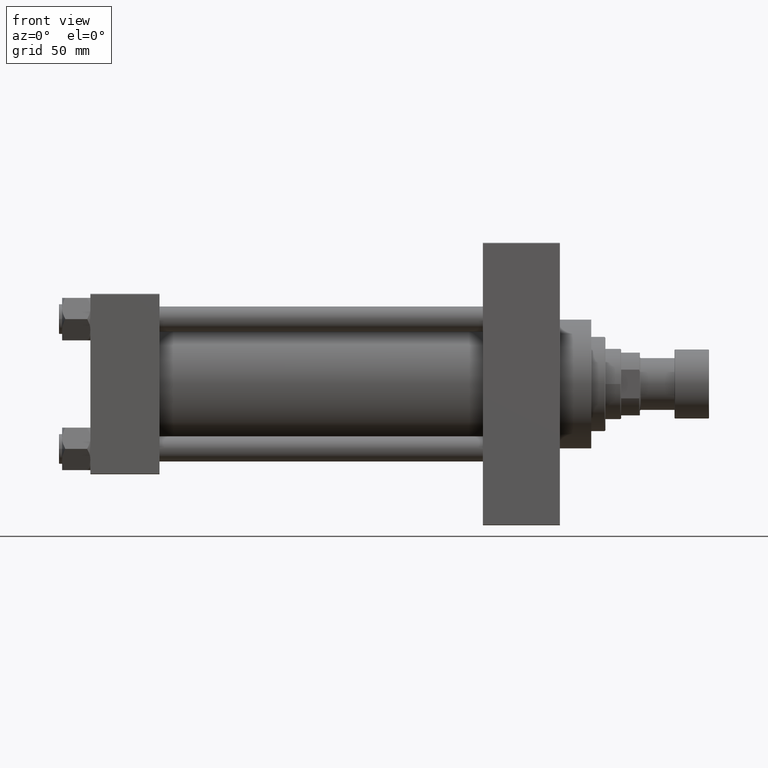
[diagram: clean part render]
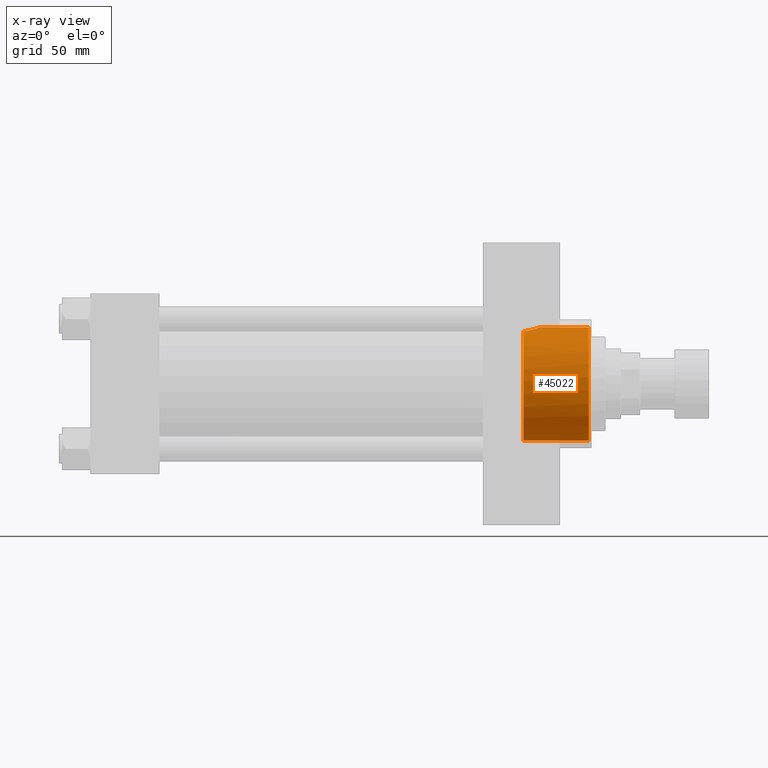
[diagram: x-ray — body ghosted, one internal face saturated and labeled with its STEP entity id]
A machine part, front view, then the same camera in x-ray: the body is ghosted and one INTERNAL B-rep face — a face not visible from any outside direction — is saturated and labeled: STEP entity #45022.
In plain terms, the highlighted cylindrical surface (partial cylindrical patch) has radius 36 mm, axis along (1, 0, 0).
Its self-contained STEP definition (entity closure, byte-faithful):
#1319 = EDGE_CURVE ( 'NONE', #35714, #31705, #30993, .T. ) ;
#1709 = CARTESIAN_POINT ( 'NONE',  ( 283.7144084780976527, -7.753104972441691167, 35.15664683191295836 ) ) ;
#1771 = DIRECTION ( 'NONE',  ( 1.000000000000000000, -0.000000000000000000, -0.000000000000000000 ) ) ;
#1952 = CARTESIAN_POINT ( 'NONE',  ( 285.8814408249626240, -2.996635129533371522, 35.87694312671834496 ) ) ;
#2763 = EDGE_LOOP ( 'NONE', ( #6161, #41988, #17212, #40558, #15771 ) ) ;
#5133 = CARTESIAN_POINT ( 'NONE',  ( 284.1369082302657034, -7.132913908064977271, 35.28770313236167055 ) ) ;
#5620 = CARTESIAN_POINT ( 'NONE',  ( 282.7829955645538007, -8.922873027715082728, 34.88174282732674669 ) ) ;
#5858 = CARTESIAN_POINT ( 'NONE',  ( 285.9615557504130265, -2.628343228240515916, 35.90584824798535379 ) ) ;
#6161 = ORIENTED_EDGE ( 'NONE', *, *, #23533, .F. ) ;
#6176 = CARTESIAN_POINT ( 'NONE',  ( 286.2200000000000273, 4.408731805096607676E-15, 36.00000000000000000 ) ) ;
#7183 = DIRECTION ( 'NONE',  ( 1.000000000000000000, -0.000000000000000000, -0.000000000000000000 ) ) ;
#8819 = CARTESIAN_POINT ( 'NONE',  ( 284.3340033522583212, -6.815280192024304462, 35.35054759480855324 ) ) ;
#9060 = CARTESIAN_POINT ( 'NONE',  ( 285.1948937127547765, -5.159834589306234065, 35.63551938799943741 ) ) ;
#9305 = CARTESIAN_POINT ( 'NONE',  ( 284.8836492013383577, -5.839896060611117434, 35.52932100949514194 ) ) ;
#9538 = CARTESIAN_POINT ( 'NONE',  ( 281.1396695021039136, -10.42376285600498598, 34.45866136291866155 ) ) ;
#10606 = CYLINDRICAL_SURFACE ( 'NONE', #39675, 36.00000000000000000 ) ;
#13200 = CARTESIAN_POINT ( 'NONE',  ( 286.2200000000000841, -0.7632647160769693295, 36.00000000000000711 ) ) ;
#14576 = VERTEX_POINT ( 'NONE', #42443 ) ;
#15120 = CARTESIAN_POINT ( 'NONE',  ( 275.7400000000000091, 0.000000000000000000, -36.00000000000000000 ) ) ;
#15771 = ORIENTED_EDGE ( 'NONE', *, *, #1319, .F. ) ;
#15899 = CARTESIAN_POINT ( 'NONE',  ( 283.4891427515922260, -8.055144359843696478, 35.08850325643999213 ) ) ;
#16615 = CARTESIAN_POINT ( 'NONE',  ( 278.6039743856110817, -11.99680468088063101, 33.94354112271071955 ) ) ;
#16859 = CARTESIAN_POINT ( 'NONE',  ( 277.5622627804117428, -12.41346128962092443, 33.79242230791056301 ) ) ;
#17212 = ORIENTED_EDGE ( 'NONE', *, *, #24922, .T. ) ;
#17685 = CARTESIAN_POINT ( 'NONE',  ( 275.7400000000000091, 0.000000000000000000, 0.000000000000000000 ) ) ;
#17859 = VERTEX_POINT ( 'NONE', #43949 ) ;
#20048 = CARTESIAN_POINT ( 'NONE',  ( 281.4301524439943023, -10.19013505585469659, 34.52862519156883536 ) ) ;
#20100 = VECTOR ( 'NONE', #41722, 1000.000000000000000 ) ;
#20462 = DIRECTION ( 'NONE',  ( 1.000000000000000000, 0.000000000000000000, 0.000000000000000000 ) ) ;
#20527 = CARTESIAN_POINT ( 'NONE',  ( 285.6891278366015854, -3.727918262643104441, 35.80834393886973999 ) ) ;
#22561 = CIRCLE ( 'NONE', #30398, 36.00000000000000000 ) ;
#23533 = EDGE_CURVE ( 'NONE', #34764, #35714, #48169, .T. ) ;
#23957 = CARTESIAN_POINT ( 'NONE',  ( 275.7400000000000091, -12.93293470176046611, 33.59671412504502541 ) ) ;
#24370 = DIRECTION ( 'NONE',  ( 0.000000000000000000, 0.000000000000000000, -1.000000000000000000 ) ) ;
#24434 = CARTESIAN_POINT ( 'NONE',  ( 276.4827252521804439, -12.75862568112612649, 33.66350131574143489 ) ) ;
#24922 = EDGE_CURVE ( 'NONE', #17859, #14576, #22561, .T. ) ;
#25984 = FACE_OUTER_BOUND ( 'NONE', #2763, .T. ) ;
#27159 = CARTESIAN_POINT ( 'NONE',  ( 280.2234778375481028, -11.07831175427974379, 34.25365854375354502 ) ) ;
#27876 = CARTESIAN_POINT ( 'NONE',  ( 279.2689392453521009, -11.66300537238691959, 34.06086853725206964 ) ) ;
#28125 = CARTESIAN_POINT ( 'NONE',  ( 282.2683236211794338, -9.456123306897660896, 34.73961675537525196 ) ) ;
#28943 = DIRECTION ( 'NONE',  ( 0.000000000000000000, 0.000000000000000000, -1.000000000000000000 ) ) ;
#30398 = AXIS2_PLACEMENT_3D ( 'NONE', #39578, #38863, #31803 ) ;
#30993 = CIRCLE ( 'NONE', #39569, 36.00000000000000000 ) ;
#31542 = CARTESIAN_POINT ( 'NONE',  ( 280.5356348427428657, -10.86845247487192090, 34.32099817610180281 ) ) ;
#31705 = VERTEX_POINT ( 'NONE', #32562 ) ;
#31803 = DIRECTION ( 'NONE',  ( 0.000000000000000000, 0.000000000000000000, -1.000000000000000000 ) ) ;
#32562 = CARTESIAN_POINT ( 'NONE',  ( 275.7400000000000091, 0.000000000000000000, -36.00000000000000000 ) ) ;
#33828 = EDGE_CURVE ( 'NONE', #34764, #17859, #38657, .T. ) ;
#34764 = VERTEX_POINT ( 'NONE', #6176 ) ;
#34949 = CARTESIAN_POINT ( 'NONE',  ( 285.5762609626180506, -4.092528755394253537, 35.76841822259746806 ) ) ;
#35488 = CARTESIAN_POINT ( 'NONE',  ( 275.7400000000000091, 4.408728476930470856E-15, 36.00000000000000000 ) ) ;
#35714 = VERTEX_POINT ( 'NONE', #36400 ) ;
#36400 = CARTESIAN_POINT ( 'NONE',  ( 275.7400000000000091, -12.93293470176046611, 33.59671412504502541 ) ) ;
#37105 = LINE ( 'NONE', #15120, #20100 ) ;
#38363 = CARTESIAN_POINT ( 'NONE',  ( 276.1130436000876784, -12.85390086390294151, 33.62713791769438387 ) ) ;
#38596 = CARTESIAN_POINT ( 'NONE',  ( 286.1544019816762443, -1.515576091947747228, 35.97576316411753794 ) ) ;
#38657 = LINE ( 'NONE', #35488, #46314 ) ;
#38863 = DIRECTION ( 'NONE',  ( 1.000000000000000000, 0.000000000000000000, 0.000000000000000000 ) ) ;
#39569 = AXIS2_PLACEMENT_3D ( 'NONE', #42200, #20462, #24370 ) ;
#39578 = CARTESIAN_POINT ( 'NONE',  ( 317.5000000000000000, 0.000000000000000000, 0.000000000000000000 ) ) ;
#39675 = AXIS2_PLACEMENT_3D ( 'NONE', #17685, #7183, #28943 ) ;
#40558 = ORIENTED_EDGE ( 'NONE', *, *, #42149, .F. ) ;
#41722 = DIRECTION ( 'NONE',  ( 1.000000000000000000, -0.000000000000000000, -0.000000000000000000 ) ) ;
#41988 = ORIENTED_EDGE ( 'NONE', *, *, #33828, .T. ) ;
#42149 = EDGE_CURVE ( 'NONE', #31705, #14576, #37105, .T. ) ;
#42200 = CARTESIAN_POINT ( 'NONE',  ( 275.7400000000000091, 0.000000000000000000, 0.000000000000000000 ) ) ;
#42262 = CARTESIAN_POINT ( 'NONE',  ( 286.2200000000000273, 4.408731805096607676E-15, 36.00000000000000000 ) ) ;
#42443 = CARTESIAN_POINT ( 'NONE',  ( 317.5000000000000000, 0.000000000000000000, -36.00000000000000000 ) ) ;
#42742 = CARTESIAN_POINT ( 'NONE',  ( 277.2076088460675578, -12.53825874082046887, 33.74619856893892944 ) ) ;
#43949 = CARTESIAN_POINT ( 'NONE',  ( 317.5000000000000000, 4.408728476930470856E-15, 36.00000000000000000 ) ) ;
#45022 = ADVANCED_FACE ( 'NONE', ( #25984 ), #10606, .F. ) ;
#46314 = VECTOR ( 'NONE', #1771, 1000.000000000000000 ) ;
#48169 = B_SPLINE_CURVE_WITH_KNOTS ( 'NONE', 3,
 ( #42262, #13200, #38596, #5858, #1952, #20527, #34949, #9060, #9305, #8819, #5133, #1709, #15899, #5620, #28125, #20048, #9538, #31542, #27159, #27876, #16615, #16859, #42742, #24434, #38363, #23957 ),
 .UNSPECIFIED., .F., .F.,
 ( 4, 2, 2, 2, 2, 2, 2, 2, 2, 2, 2, 2, 4 ),
 ( 0.01810032772820881902, 0.02036086973656279359, 0.02149114074073979821, 0.02262141174491679937, 0.02488195375327080516, 0.02601222475744784796, 0.02714249576162488728, 0.02940303776997887225, 0.03053330877415585953, 0.03166357977833285375, 0.03392412178668670342, 0.03505439279086354498, 0.03618466379504039349 ),
 .UNSPECIFIED. ) ;